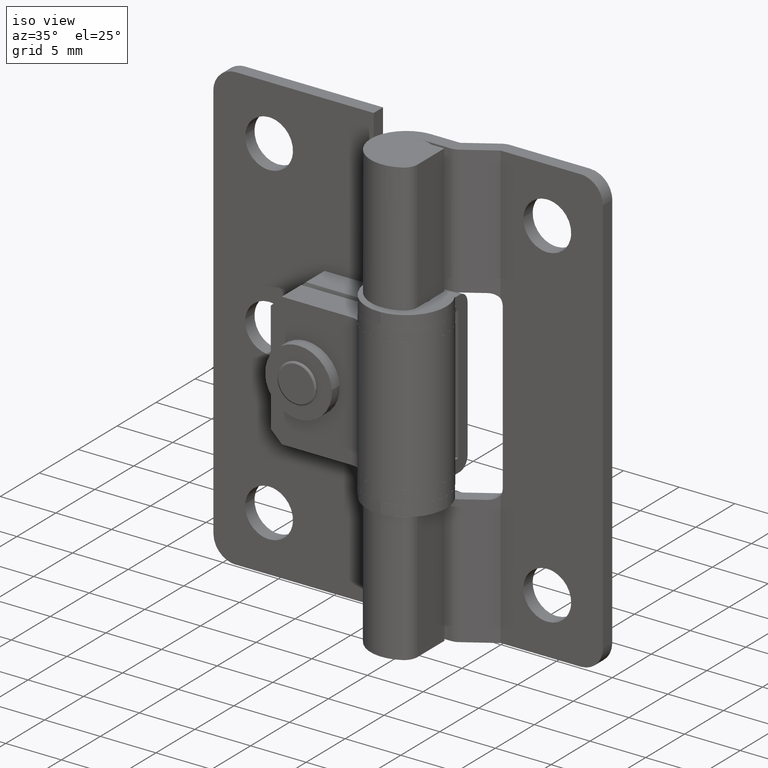
[diagram: clean part render]
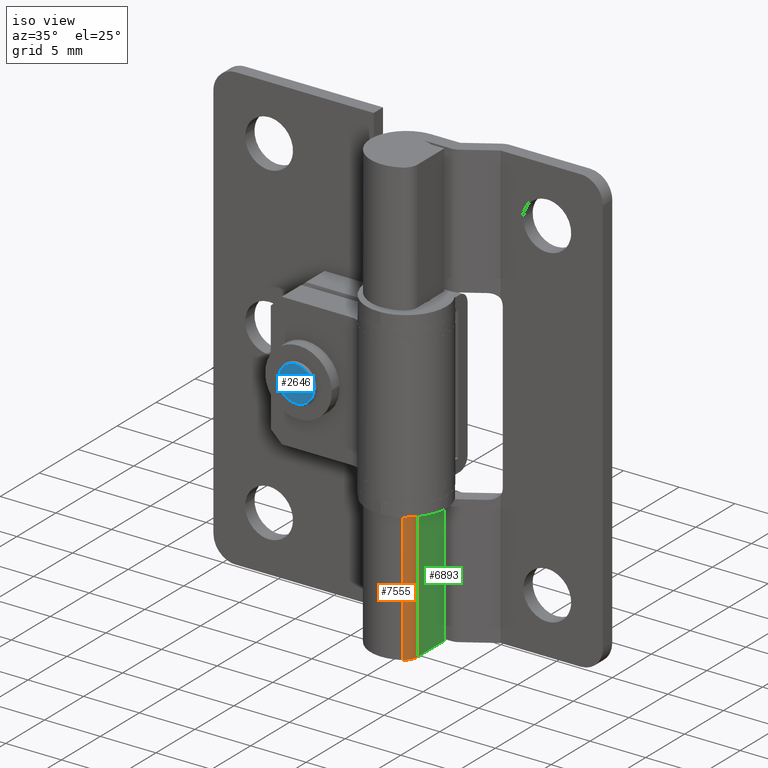
[diagram: same view with three faces highlighted in distinct colors, each labeled with its STEP entity id]
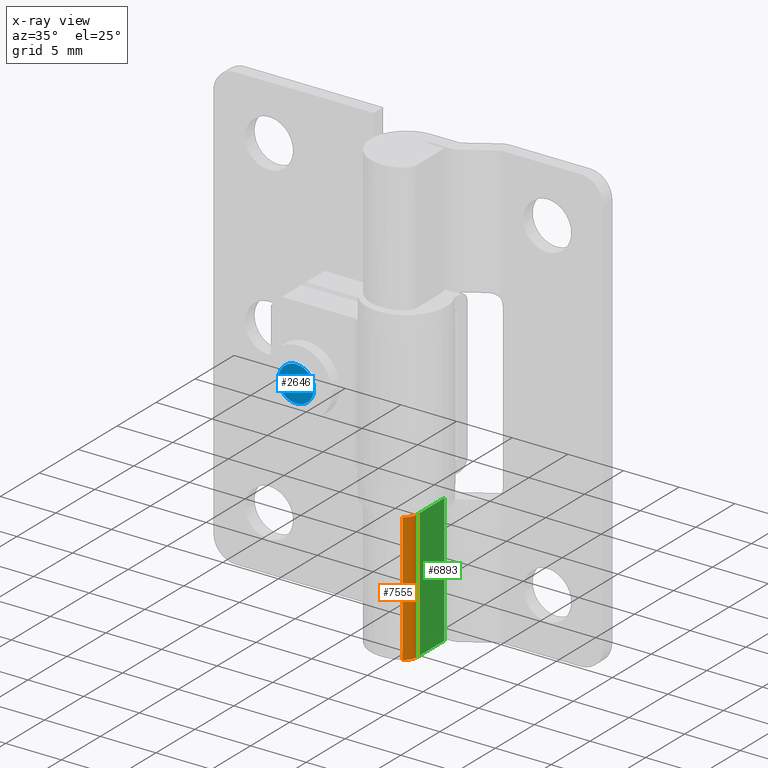
[diagram: x-ray of the same camera — body ghosted, the three highlighted faces saturated]
A machine part, iso view with three faces highlighted in distinct colors.
The next image is the same camera in x-ray (body ghosted, the three faces saturated) — at least one of them is partly hidden behind the body in this view.
Their STEP definitions:

[orange] entity #7555 — the highlighted face is a freeform B-spline surface patch.
#6872=CARTESIAN_POINT('',(2.200000000000000,-1.732051000000000,11.600000000000000));
#6873=VERTEX_POINT('',#6872);
#6879=CARTESIAN_POINT('',(2.200000000000000,-1.732051000000000,0.0));
#6880=VERTEX_POINT('',#6879);
#6881=CARTESIAN_POINT('',(2.200000000000000,-1.732051000000000,0.0));
#6882=CARTESIAN_POINT('',(2.200000000000000,-1.732051000000000,11.600000000000000));
#6883=QUASI_UNIFORM_CURVE('',1,(#6881,#6882),.UNSPECIFIED.,.F.,.U.);
#6884=EDGE_CURVE('',#6880,#6873,#6883,.T.);
#7316=CARTESIAN_POINT('',(1.600000000000000,-2.771281484541325,11.600000000000000));
#7317=VERTEX_POINT('',#7316);
#7343=CARTESIAN_POINT('',(2.200000000000000,-1.732051000000000,11.600000000000000));
#7344=CARTESIAN_POINT('',(2.200000000000000,-2.424871323027549,11.599999999999998));
#7345=CARTESIAN_POINT('',(1.600000000000002,-2.771281484541325,11.600000000000000));
#7353=(BOUNDED_CURVE()B_SPLINE_CURVE(2,(#7343,#7344,#7345),.UNSPECIFIED.,.F.,.U.)CURVE()GEOMETRIC_REPRESENTATION_ITEM()QUASI_UNIFORM_CURVE()RATIONAL_B_SPLINE_CURVE((1.0,0.866025403784439,1.0))REPRESENTATION_ITEM(''));
#7354=EDGE_CURVE('',#6873,#7317,#7353,.T.);
#7454=CARTESIAN_POINT('',(1.600000000000000,-2.771281484541325,0.0));
#7455=VERTEX_POINT('',#7454);
#7456=CARTESIAN_POINT('',(2.200000000000000,-1.732051000000000,0.0));
#7457=CARTESIAN_POINT('',(2.200000000000000,-2.424871323027550,0.0));
#7458=CARTESIAN_POINT('',(1.600000000000000,-2.771281484541326,0.0));
#7466=(BOUNDED_CURVE()B_SPLINE_CURVE(2,(#7456,#7457,#7458),.UNSPECIFIED.,.F.,.U.)CURVE()GEOMETRIC_REPRESENTATION_ITEM()QUASI_UNIFORM_CURVE()RATIONAL_B_SPLINE_CURVE((1.0,0.866025403784439,1.0))REPRESENTATION_ITEM(''));
#7467=EDGE_CURVE('',#6880,#7455,#7466,.T.);
#7531=CARTESIAN_POINT('',(2.199588789970668,-1.700638662030550,-0.290000000000000));
#7532=CARTESIAN_POINT('',(2.199588789970668,-1.700638662030550,11.897250000000000));
#7533=CARTESIAN_POINT('',(2.219356103114515,-2.455521895435869,-0.290000000000000));
#7534=CARTESIAN_POINT('',(2.219356103114515,-2.455521895435869,11.897250000000005));
#7535=CARTESIAN_POINT('',(1.547340208782729,-2.799954879499309,-0.290000000000000));
#7536=CARTESIAN_POINT('',(1.547340208782729,-2.799954879499309,11.897250000000001));
#7544=(BOUNDED_SURFACE()B_SPLINE_SURFACE(1,2,((#7531,#7533,#7535),(#7532,#7534,#7536)),.UNSPECIFIED.,.F.,.F.,.U.)B_SPLINE_SURFACE_WITH_KNOTS((2,2),(3,3),(0.0,12.187250000000001),(0.0,0.973882330340333),.UNSPECIFIED.)GEOMETRIC_REPRESENTATION_ITEM()RATIONAL_B_SPLINE_SURFACE(((1.0,0.842884116758207,0.991792998526408),(1.0,0.842884116758207,0.991792998526408)))REPRESENTATION_ITEM('')SURFACE());
#7545=ORIENTED_EDGE('',*,*,#6884,.T.);
#7546=ORIENTED_EDGE('',*,*,#7354,.T.);
#7547=CARTESIAN_POINT('',(1.600000000000000,-2.771281484541325,0.0));
#7548=CARTESIAN_POINT('',(1.600000000000000,-2.771281484541325,11.600000000000000));
#7549=QUASI_UNIFORM_CURVE('',1,(#7547,#7548),.UNSPECIFIED.,.F.,.U.);
#7550=EDGE_CURVE('',#7455,#7317,#7549,.T.);
#7551=ORIENTED_EDGE('',*,*,#7550,.F.);
#7552=ORIENTED_EDGE('',*,*,#7467,.F.);
#7553=EDGE_LOOP('',(#7545,#7546,#7551,#7552));
#7554=FACE_OUTER_BOUND('',#7553,.T.);
#7555=ADVANCED_FACE('',(#7554),#7544,.T.);

[blue] entity #2646 — the highlighted face is a freeform B-spline surface patch.
#2505=CARTESIAN_POINT('',(-9.399873695895344,-2.999999999999996,19.979894334705161));
#2506=VERTEX_POINT('',#2505);
#2520=CARTESIAN_POINT('',(-7.800000000000000,-3.0,21.599999999999969));
#2521=VERTEX_POINT('',#2520);
#2522=CARTESIAN_POINT('',(-9.399873695895344,-2.999999999999996,19.979894334705165));
#2523=CARTESIAN_POINT('',(-9.400000025105749,-2.999999999999995,19.989946770314905));
#2524=CARTESIAN_POINT('',(-9.400000025026630,-2.999999999999996,19.999999999685489));
#2525=CARTESIAN_POINT('',(-9.400000012434672,-2.999999999999999,21.599999999843689));
#2526=CARTESIAN_POINT('',(-7.800000000000000,-3.0,21.599999999999969));
#2534=(BOUNDED_CURVE()B_SPLINE_CURVE(2,(#2522,#2523,#2524,#2525,#2526),.UNSPECIFIED.,.F.,.U.)B_SPLINE_CURVE_WITH_KNOTS((3,2,3),(0.747784295793666,0.750000000000000,1.0),.UNSPECIFIED.)CURVE()GEOMETRIC_REPRESENTATION_ITEM()RATIONAL_B_SPLINE_CURVE((0.994854295349263,0.997404141052273,1.0,0.707106781186548,1.0))REPRESENTATION_ITEM(''));
#2535=EDGE_CURVE('',#2506,#2521,#2534,.T.);
#2537=CARTESIAN_POINT('',(-6.200126304104652,-2.999999999999996,20.020105665294839));
#2538=VERTEX_POINT('',#2537);
#2539=CARTESIAN_POINT('',(-7.800000000000000,-3.0,21.599999999999969));
#2540=CARTESIAN_POINT('',(-6.219980900706995,-2.999999999999998,21.600000000158207));
#2541=CARTESIAN_POINT('',(-6.200126304104652,-2.999999999999995,20.020105665294839));
#2549=(BOUNDED_CURVE()B_SPLINE_CURVE(2,(#2539,#2540,#2541),.UNSPECIFIED.,.F.,.U.)B_SPLINE_CURVE_WITH_KNOTS((3,3),(0.0,0.247784295793666),.UNSPECIFIED.)CURVE()GEOMETRIC_REPRESENTATION_ITEM()RATIONAL_B_SPLINE_CURVE((1.0,0.709702640134274,0.994854295349263))REPRESENTATION_ITEM(''));
#2550=EDGE_CURVE('',#2521,#2538,#2549,.T.);
#2601=CARTESIAN_POINT('',(-7.800000000000000,-3.0,18.400000000000031));
#2602=VERTEX_POINT('',#2601);
#2603=CARTESIAN_POINT('',(-6.200126304104652,-2.999999999999996,20.020105665294835));
#2604=CARTESIAN_POINT('',(-6.199999974894247,-2.999999999999996,20.010053229685088));
#2605=CARTESIAN_POINT('',(-6.199999974973366,-2.999999999999996,20.000000000314511));
#2606=CARTESIAN_POINT('',(-6.199999987565326,-2.999999999999999,18.400000000156307));
#2607=CARTESIAN_POINT('',(-7.800000000000000,-3.0,18.400000000000031));
#2615=(BOUNDED_CURVE()B_SPLINE_CURVE(2,(#2603,#2604,#2605,#2606,#2607),.UNSPECIFIED.,.F.,.U.)B_SPLINE_CURVE_WITH_KNOTS((3,2,3),(0.247784295793666,0.250000000000000,0.500000000000000),.UNSPECIFIED.)CURVE()GEOMETRIC_REPRESENTATION_ITEM()RATIONAL_B_SPLINE_CURVE((0.994854295349263,0.997404141052274,1.0,0.707106781186548,1.0))REPRESENTATION_ITEM(''));
#2616=EDGE_CURVE('',#2538,#2602,#2615,.T.);
#2618=CARTESIAN_POINT('',(-7.800000000000000,-3.0,18.400000000000031));
#2619=CARTESIAN_POINT('',(-9.380019099293000,-2.999999999999997,18.399999999841793));
#2620=CARTESIAN_POINT('',(-9.399873695895344,-2.999999999999996,19.979894334705165));
#2628=(BOUNDED_CURVE()B_SPLINE_CURVE(2,(#2618,#2619,#2620),.UNSPECIFIED.,.F.,.U.)B_SPLINE_CURVE_WITH_KNOTS((3,3),(0.500000000000000,0.747784295793666),.UNSPECIFIED.)CURVE()GEOMETRIC_REPRESENTATION_ITEM()RATIONAL_B_SPLINE_CURVE((1.0,0.709702640134274,0.994854295349263))REPRESENTATION_ITEM(''));
#2629=EDGE_CURVE('',#2602,#2506,#2628,.T.);
#2635=CARTESIAN_POINT('',(-9.559701071913558,-3.0,18.240160006202260));
#2636=CARTESIAN_POINT('',(-9.559701071913558,-3.0,21.759840079628429));
#2637=CARTESIAN_POINT('',(-6.040298842262525,-3.0,18.240160006202260));
#2638=CARTESIAN_POINT('',(-6.040298842262525,-3.0,21.759840079628429));
#2639=B_SPLINE_SURFACE_WITH_KNOTS('',1,1,((#2635,#2637),(#2636,#2638)),.UNSPECIFIED.,.F.,.F.,.U.,(2,2),(2,2),(0.0,3.519680073426173),(0.0,3.519402229651033),.UNSPECIFIED.);
#2640=ORIENTED_EDGE('',*,*,#2535,.F.);
#2641=ORIENTED_EDGE('',*,*,#2629,.F.);
#2642=ORIENTED_EDGE('',*,*,#2616,.F.);
#2643=ORIENTED_EDGE('',*,*,#2550,.F.);
#2644=EDGE_LOOP('',(#2640,#2641,#2642,#2643));
#2645=FACE_OUTER_BOUND('',#2644,.T.);
#2646=ADVANCED_FACE('',(#2645),#2639,.F.);

[green] entity #6893 — the highlighted face is a freeform B-spline surface patch.
#6858=CARTESIAN_POINT('',(2.200000000000000,-1.905082888185898,-0.579419977516949));
#6859=CARTESIAN_POINT('',(2.200000000000000,-1.905082888185898,12.179420288653199));
#6860=CARTESIAN_POINT('',(2.200000000000000,1.905082981100354,-0.579419977516949));
#6861=CARTESIAN_POINT('',(2.200000000000000,1.905082981100354,12.179420288653199));
#6862=B_SPLINE_SURFACE_WITH_KNOTS('',1,1,((#6858,#6860),(#6859,#6861)),.UNSPECIFIED.,.F.,.F.,.U.,(2,2),(2,2),(0.0,12.758840266170150),(0.0,3.810165869286253),.UNSPECIFIED.);
#6863=CARTESIAN_POINT('',(2.200000000000000,1.732051000000000,0.0));
#6864=VERTEX_POINT('',#6863);
#6865=CARTESIAN_POINT('',(2.200000000000000,1.732051000000000,11.600000000000000));
#6866=VERTEX_POINT('',#6865);
#6867=CARTESIAN_POINT('',(2.200000000000000,1.732051000000000,0.0));
#6868=CARTESIAN_POINT('',(2.200000000000000,1.732051000000000,11.600000000000000));
#6869=QUASI_UNIFORM_CURVE('',1,(#6867,#6868),.UNSPECIFIED.,.F.,.U.);
#6870=EDGE_CURVE('',#6864,#6866,#6869,.T.);
#6871=ORIENTED_EDGE('',*,*,#6870,.T.);
#6872=CARTESIAN_POINT('',(2.200000000000000,-1.732051000000000,11.600000000000000));
#6873=VERTEX_POINT('',#6872);
#6874=CARTESIAN_POINT('',(2.200000000000000,1.732051000000000,11.600000000000000));
#6875=CARTESIAN_POINT('',(2.200000000000000,-1.732051000000000,11.600000000000000));
#6876=QUASI_UNIFORM_CURVE('',1,(#6874,#6875),.UNSPECIFIED.,.F.,.U.);
#6877=EDGE_CURVE('',#6866,#6873,#6876,.T.);
#6878=ORIENTED_EDGE('',*,*,#6877,.T.);
#6879=CARTESIAN_POINT('',(2.200000000000000,-1.732051000000000,0.0));
#6880=VERTEX_POINT('',#6879);
#6881=CARTESIAN_POINT('',(2.200000000000000,-1.732051000000000,0.0));
#6882=CARTESIAN_POINT('',(2.200000000000000,-1.732051000000000,11.600000000000000));
#6883=QUASI_UNIFORM_CURVE('',1,(#6881,#6882),.UNSPECIFIED.,.F.,.U.);
#6884=EDGE_CURVE('',#6880,#6873,#6883,.T.);
#6885=ORIENTED_EDGE('',*,*,#6884,.F.);
#6886=CARTESIAN_POINT('',(2.200000000000000,1.732051000000000,0.0));
#6887=CARTESIAN_POINT('',(2.200000000000000,-1.732051000000000,0.0));
#6888=QUASI_UNIFORM_CURVE('',1,(#6886,#6887),.UNSPECIFIED.,.F.,.U.);
#6889=EDGE_CURVE('',#6864,#6880,#6888,.T.);
#6890=ORIENTED_EDGE('',*,*,#6889,.F.);
#6891=EDGE_LOOP('',(#6871,#6878,#6885,#6890));
#6892=FACE_OUTER_BOUND('',#6891,.T.);
#6893=ADVANCED_FACE('',(#6892),#6862,.F.);